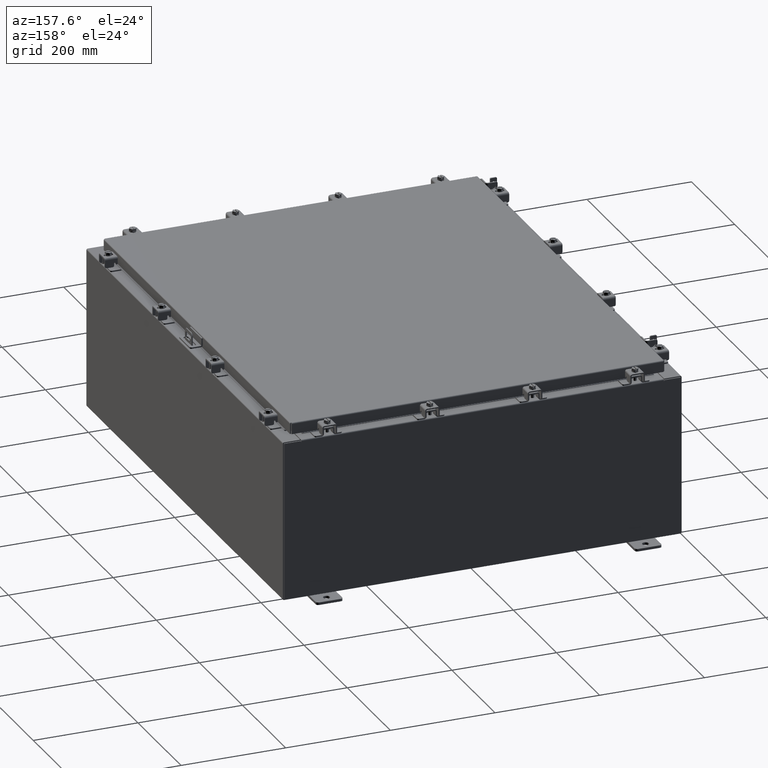
[diagram: clean part render]
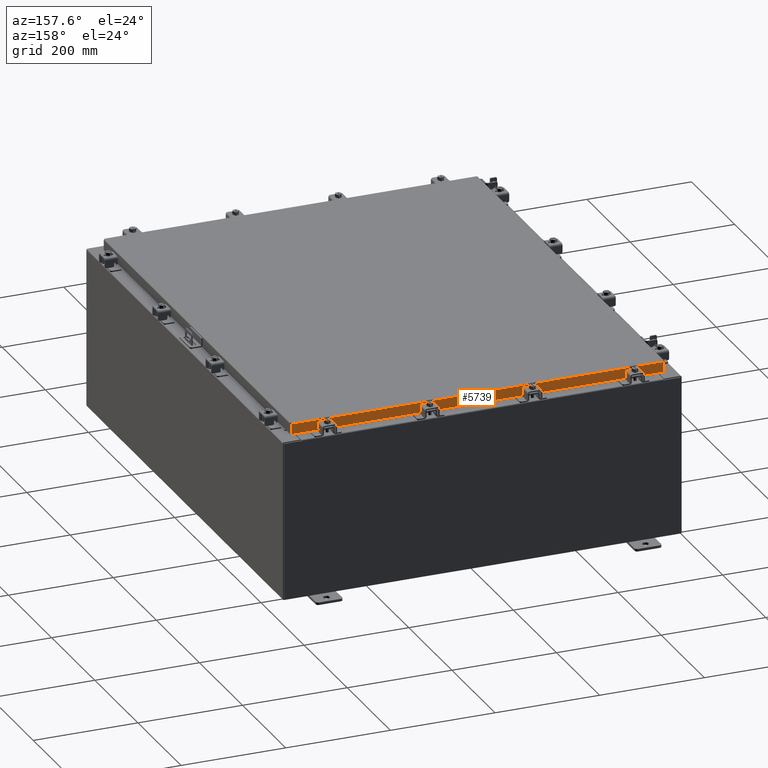
[diagram: same view with one face highlighted and labeled with its STEP entity id]
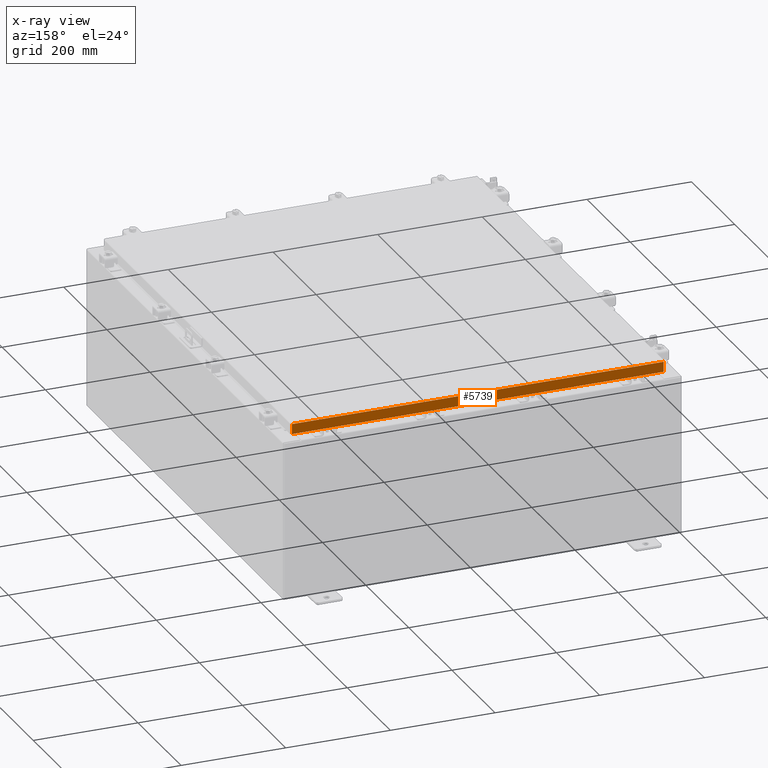
[diagram: x-ray of the same camera — body ghosted, the highlighted face saturated]
A machine part, auxiliary view. The second image highlights one B-rep face of the part: STEP entity #5739.
The next image is the same camera in x-ray: the body ghosted, the highlighted face saturated — about 0% of this face is hidden behind the body in this view.
In plain terms, the highlighted planar face has unit normal (0, -1, -0).
Its self-contained STEP definition (entity closure, byte-faithful):
#139 = EDGE_CURVE ( 'NONE', #20399, #17275, #7857, .T. ) ;
#2132 = VECTOR ( 'NONE', #8069, 39.37007874015748100 ) ;
#2224 = CARTESIAN_POINT ( 'NONE',  ( -13.23915786437626400, 17.09399999999999800, -0.8500000000000040900 ) ) ;
#3138 = DIRECTION ( 'NONE',  ( 1.000000000000000000, -4.379057701015054300E-047, 1.261330583805776300E-016 ) ) ;
#3341 = ORIENTED_EDGE ( 'NONE', *, *, #18520, .F. ) ;
#3603 = VECTOR ( 'NONE', #14325, 39.37007874015748100 ) ;
#4211 = LINE ( 'NONE', #12432, #3603 ) ;
#4859 = VERTEX_POINT ( 'NONE', #8718 ) ;
#5739 = ADVANCED_FACE ( 'NONE', ( #20737 ), #11754, .F. ) ;
#5997 = CARTESIAN_POINT ( 'NONE',  ( -13.23915786437626400, 17.09399999999999800, -0.8500000000000040900 ) ) ;
#6624 = ORIENTED_EDGE ( 'NONE', *, *, #17178, .T. ) ;
#6978 = ORIENTED_EDGE ( 'NONE', *, *, #15671, .F. ) ;
#7675 = CARTESIAN_POINT ( 'NONE',  ( -14.07799999999999800, 17.09399999999999800, -0.8500000000000032000 ) ) ;
#7777 = LINE ( 'NONE', #15704, #2132 ) ;
#7857 = LINE ( 'NONE', #11127, #12329 ) ;
#8069 = DIRECTION ( 'NONE',  ( -0.0000000000000000000, 2.818880942772347100E-015, -1.000000000000000000 ) ) ;
#8718 = CARTESIAN_POINT ( 'NONE',  ( 13.23915786437625100, 17.09399999999999800, -0.8500000000000040900 ) ) ;
#9508 = CARTESIAN_POINT ( 'NONE',  ( 13.98915786437626700, 17.09399999999999800, 4.844676449176206800E-014 ) ) ;
#10842 = VERTEX_POINT ( 'NONE', #15125 ) ;
#11127 = CARTESIAN_POINT ( 'NONE',  ( -14.07799999999999800, 17.09399999999999800, -0.8500000000000032000 ) ) ;
#11451 = DIRECTION ( 'NONE',  ( 0.0000000000000000000, 2.818880942772347100E-015, -1.000000000000000000 ) ) ;
#11754 = PLANE ( 'NONE',  #15446 ) ;
#11987 = DIRECTION ( 'NONE',  ( 0.0000000000000000000, 2.818880942772347100E-015, -1.000000000000000000 ) ) ;
#12030 = LINE ( 'NONE', #7675, #17102 ) ;
#12329 = VECTOR ( 'NONE', #3138, 39.37007874015748100 ) ;
#12432 = CARTESIAN_POINT ( 'NONE',  ( -14.07799999999999800, 17.09399999999999800, -0.08770000000000007000 ) ) ;
#13124 = CARTESIAN_POINT ( 'NONE',  ( -13.98915786437626900, 17.09399999999999800, -0.8500000000000032000 ) ) ;
#14002 = EDGE_CURVE ( 'NONE', #4859, #14419, #12030, .T. ) ;
#14265 = VECTOR ( 'NONE', #19352, 39.37007874015748100 ) ;
#14325 = DIRECTION ( 'NONE',  ( -1.000000000000000000, -1.367515671240777000E-031, -7.762034361881699600E-017 ) ) ;
#14419 = VERTEX_POINT ( 'NONE', #23913 ) ;
#15125 = CARTESIAN_POINT ( 'NONE',  ( 13.98915786437626500, 17.09399999999999800, -0.08769999999999787700 ) ) ;
#15446 = AXIS2_PLACEMENT_3D ( 'NONE', #17652, #23332, #11987 ) ;
#15484 = EDGE_CURVE ( 'NONE', #16878, #20399, #7777, .T. ) ;
#15570 = ORIENTED_EDGE ( 'NONE', *, *, #14002, .F. ) ;
#15671 = EDGE_CURVE ( 'NONE', #10842, #16878, #4211, .T. ) ;
#15704 = CARTESIAN_POINT ( 'NONE',  ( -13.98915786437626900, 17.09399999999999800, -0.07469999999999978000 ) ) ;
#16672 = LINE ( 'NONE', #9508, #21082 ) ;
#16878 = VERTEX_POINT ( 'NONE', #23844 ) ;
#16935 = ORIENTED_EDGE ( 'NONE', *, *, #139, .F. ) ;
#17102 = VECTOR ( 'NONE', #20975, 39.37007874015748100 ) ;
#17178 = EDGE_CURVE ( 'NONE', #10842, #14419, #16672, .T. ) ;
#17275 = VERTEX_POINT ( 'NONE', #5997 ) ;
#17652 = CARTESIAN_POINT ( 'NONE',  ( -6.077841349889359500E-030, 17.09399999999999800, 4.844676449176206800E-014 ) ) ;
#18131 = ORIENTED_EDGE ( 'NONE', *, *, #15484, .F. ) ;
#18520 = EDGE_CURVE ( 'NONE', #17275, #4859, #23715, .T. ) ;
#19352 = DIRECTION ( 'NONE',  ( 1.000000000000000000, -0.0000000000000000000, -0.0000000000000000000 ) ) ;
#20399 = VERTEX_POINT ( 'NONE', #13124 ) ;
#20549 = EDGE_LOOP ( 'NONE', ( #6978, #6624, #15570, #3341, #16935, #18131 ) ) ;
#20737 = FACE_OUTER_BOUND ( 'NONE', #20549, .T. ) ;
#20975 = DIRECTION ( 'NONE',  ( 1.000000000000000000, -4.379057701015054300E-047, 1.261330583805776300E-016 ) ) ;
#21082 = VECTOR ( 'NONE', #11451, 39.37007874015748100 ) ;
#23332 = DIRECTION ( 'NONE',  ( 3.555540745226020900E-031, -1.000000000000000000, -2.818880942772347100E-015 ) ) ;
#23715 = LINE ( 'NONE', #2224, #14265 ) ;
#23844 = CARTESIAN_POINT ( 'NONE',  ( -13.98915786437626700, 17.09399999999999800, -0.08769999999999897300 ) ) ;
#23913 = CARTESIAN_POINT ( 'NONE',  ( 13.98915786437626500, 17.09399999999999800, -0.8499999999999996400 ) ) ;